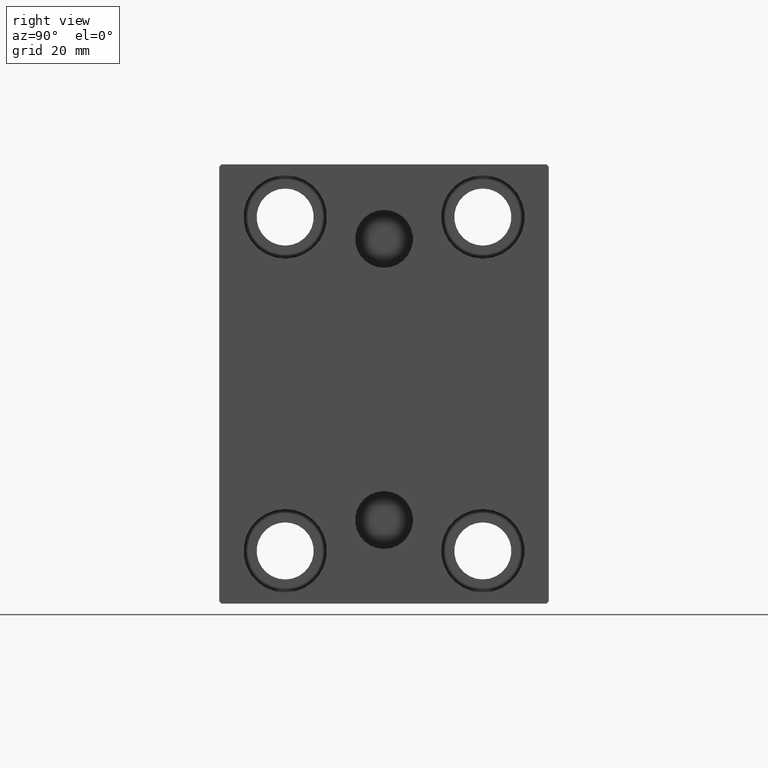
[diagram: clean part render]
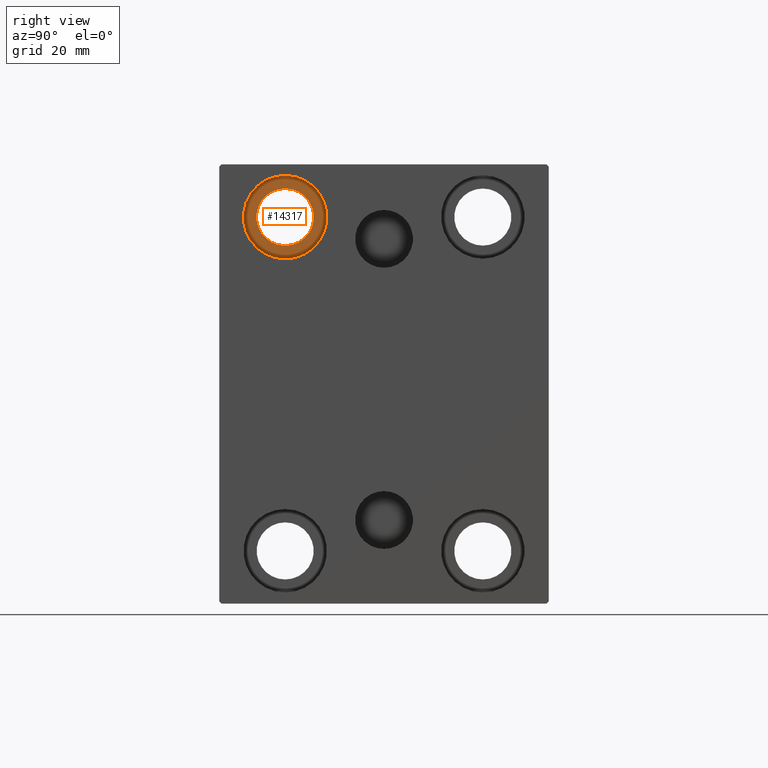
[diagram: same view with one face highlighted and labeled with its STEP entity id]
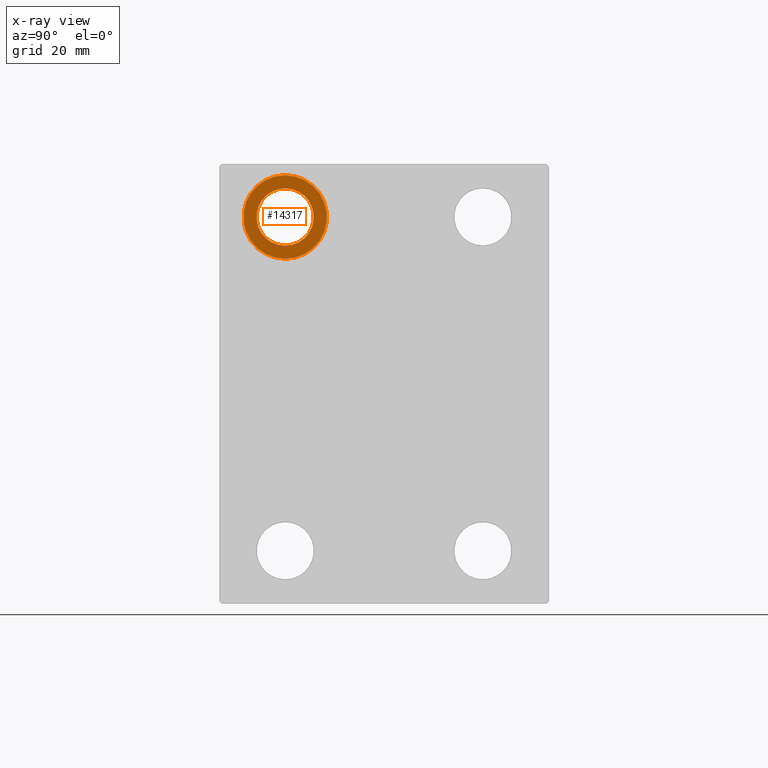
[diagram: x-ray of the same camera — body ghosted, the highlighted face saturated]
A machine part, right view. The second image highlights one B-rep face of the part: STEP entity #14317.
The next image is the same camera in x-ray: the body ghosted, the highlighted face saturated — about 0% of this face is hidden behind the body in this view.
In plain terms, the highlighted planar face has unit normal (1, 0, 0).
Its self-contained STEP definition (entity closure, byte-faithful):
#648 = CARTESIAN_POINT ( 'NONE',  ( 85.00000000000000000, -22.49999999999999645, 37.99999999999999289 ) ) ;
#1084 = DIRECTION ( 'NONE',  ( -1.000000000000000000, -0.000000000000000000, -0.000000000000000000 ) ) ;
#3529 = FACE_BOUND ( 'NONE', #33602, .T. ) ;
#5977 = VERTEX_POINT ( 'NONE', #20644 ) ;
#6141 = AXIS2_PLACEMENT_3D ( 'NONE', #36496, #19727, #33180 ) ;
#6947 = AXIS2_PLACEMENT_3D ( 'NONE', #30881, #1084, #17219 ) ;
#7064 = CARTESIAN_POINT ( 'NONE',  ( 85.00000000000000000, 0.000000000000000000, 0.000000000000000000 ) ) ;
#9262 = CARTESIAN_POINT ( 'NONE',  ( 85.00000000000000000, -22.49999999999999645, 28.49999999999998934 ) ) ;
#10580 = DIRECTION ( 'NONE',  ( 0.000000000000000000, 0.000000000000000000, -1.000000000000000000 ) ) ;
#13686 = PLANE ( 'NONE',  #32849 ) ;
#13901 = DIRECTION ( 'NONE',  ( 0.000000000000000000, 0.000000000000000000, 1.000000000000000000 ) ) ;
#14317 = ADVANCED_FACE ( 'NONE', ( #20300, #3529 ), #13686, .T. ) ;
#15950 = EDGE_CURVE ( 'NONE', #5977, #36061, #24466, .T. ) ;
#17219 = DIRECTION ( 'NONE',  ( 0.000000000000000000, 0.000000000000000000, 1.000000000000000000 ) ) ;
#18909 = DIRECTION ( 'NONE',  ( 0.000000000000000000, 0.000000000000000000, -1.000000000000000000 ) ) ;
#19727 = DIRECTION ( 'NONE',  ( -1.000000000000000000, -0.000000000000000000, -0.000000000000000000 ) ) ;
#19994 = EDGE_CURVE ( 'NONE', #36061, #5977, #25990, .T. ) ;
#20300 = FACE_OUTER_BOUND ( 'NONE', #33940, .T. ) ;
#20644 = CARTESIAN_POINT ( 'NONE',  ( 85.00000000000000000, -22.49999999999999645, 47.49999999999999289 ) ) ;
#21312 = CIRCLE ( 'NONE', #26270, 6.499999999999999112 ) ;
#24256 = DIRECTION ( 'NONE',  ( -1.000000000000000000, -0.000000000000000000, -0.000000000000000000 ) ) ;
#24425 = VERTEX_POINT ( 'NONE', #38544 ) ;
#24466 = CIRCLE ( 'NONE', #6141, 9.500000000000001776 ) ;
#25113 = ORIENTED_EDGE ( 'NONE', *, *, #19994, .F. ) ;
#25990 = CIRCLE ( 'NONE', #6947, 9.500000000000001776 ) ;
#26270 = AXIS2_PLACEMENT_3D ( 'NONE', #39441, #36336, #18909 ) ;
#28518 = CARTESIAN_POINT ( 'NONE',  ( 85.00000000000000000, -22.49999999999999645, 31.49999999999999289 ) ) ;
#29667 = ORIENTED_EDGE ( 'NONE', *, *, #15950, .F. ) ;
#29694 = CIRCLE ( 'NONE', #38175, 6.499999999999999112 ) ;
#30668 = DIRECTION ( 'NONE',  ( 1.000000000000000000, 0.000000000000000000, -0.000000000000000000 ) ) ;
#30881 = CARTESIAN_POINT ( 'NONE',  ( 85.00000000000000000, -22.49999999999999645, 37.99999999999999289 ) ) ;
#32263 = VERTEX_POINT ( 'NONE', #28518 ) ;
#32849 = AXIS2_PLACEMENT_3D ( 'NONE', #7064, #30668, #13901 ) ;
#33180 = DIRECTION ( 'NONE',  ( 0.000000000000000000, 0.000000000000000000, 1.000000000000000000 ) ) ;
#33602 = EDGE_LOOP ( 'NONE', ( #40697, #36723 ) ) ;
#33940 = EDGE_LOOP ( 'NONE', ( #25113, #29667 ) ) ;
#34188 = EDGE_CURVE ( 'NONE', #24425, #32263, #29694, .T. ) ;
#36061 = VERTEX_POINT ( 'NONE', #9262 ) ;
#36336 = DIRECTION ( 'NONE',  ( -1.000000000000000000, -0.000000000000000000, -0.000000000000000000 ) ) ;
#36390 = EDGE_CURVE ( 'NONE', #32263, #24425, #21312, .T. ) ;
#36496 = CARTESIAN_POINT ( 'NONE',  ( 85.00000000000000000, -22.49999999999999645, 37.99999999999999289 ) ) ;
#36723 = ORIENTED_EDGE ( 'NONE', *, *, #36390, .T. ) ;
#38175 = AXIS2_PLACEMENT_3D ( 'NONE', #648, #24256, #10580 ) ;
#38544 = CARTESIAN_POINT ( 'NONE',  ( 85.00000000000000000, -22.49999999999999645, 44.49999999999999289 ) ) ;
#39441 = CARTESIAN_POINT ( 'NONE',  ( 85.00000000000000000, -22.49999999999999645, 37.99999999999999289 ) ) ;
#40697 = ORIENTED_EDGE ( 'NONE', *, *, #34188, .T. ) ;